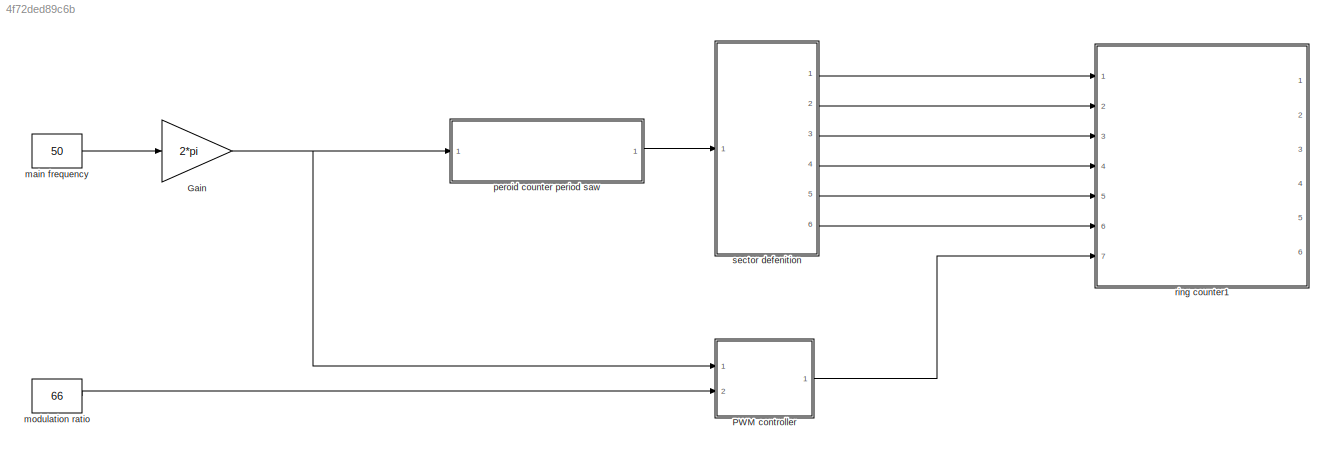
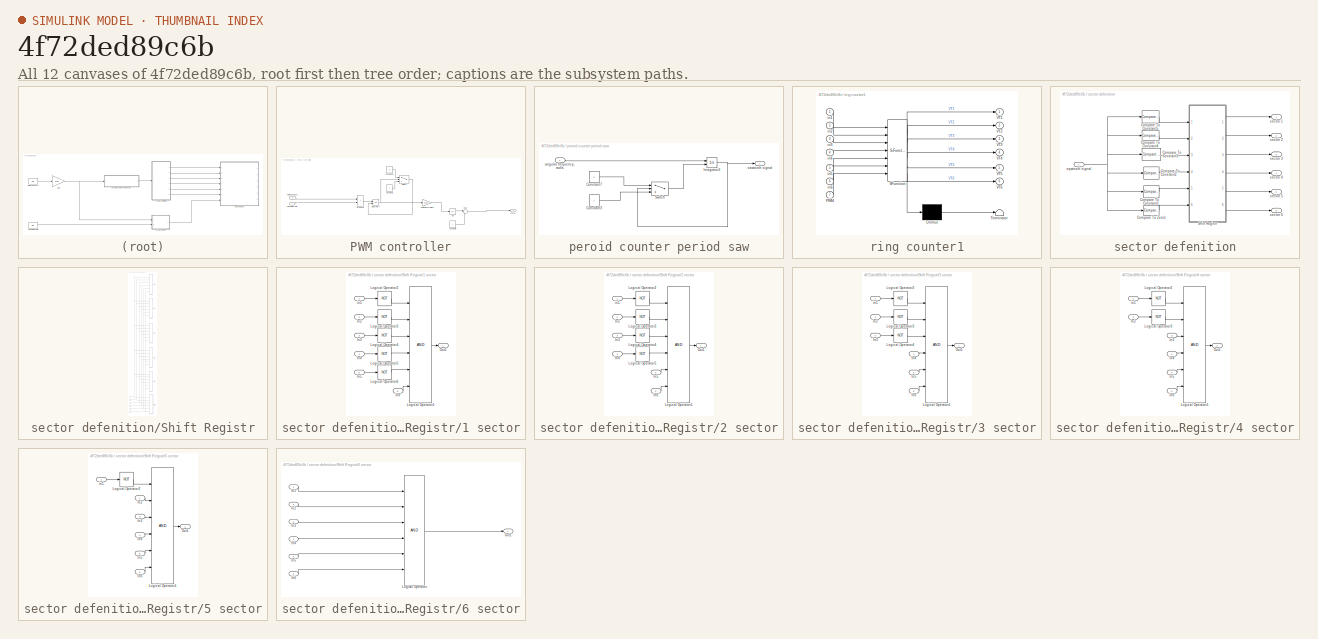
[diagram: thumbnail index - all 12 canvases of the model, root first then tree order]
MODEL slx_4f72ded89c6b
KIND model
CONFIG AbsTol = auto
CONFIG EnableMultiTasking = off
CONFIG FixedStep = auto
CONFIG MaxStep = auto
CONFIG MinStep = auto
CONFIG RelTol = 1e-3
CONFIG SampleTimeConstraint = Unconstrained
CONFIG Solver = VariableStepAuto
CONFIG SolverName = VariableStepAuto
CONFIG StartTime = 0.0
CONFIG StopTime = 0.02
BLOCK [Gain] Gain
  Gain = 2*pi
  OutDataTypeStr = Inherit: Inherit via internal rule
  ParamDataTypeStr = Inherit: Inherit via internal rule
  SaturateOnIntegerOverflow = off
BLOCK [SubSystem] PWM controller
  Ports = [2, 1]
  RequestExecContextInheritance = off
  Variant = off
BLOCK [Abs] PWM controller/Abs
  SaturateOnIntegerOverflow = off
BLOCK [Constant] PWM controller/Constant1
  OutDataTypeStr = double
  VectorParams1D = off
BLOCK [Constant] PWM controller/Constant10
  OutDataTypeStr = double
  Value = 0
  VectorParams1D = off
BLOCK [Constant] PWM controller/Constant8
  OutDataTypeStr = double
  VectorParams1D = off
BLOCK [Integrator] PWM controller/Integrator4
  ExternalReset = falling
  InitialCondition = -pi/3
  Ports = [2, 1]
BLOCK [Outport] PWM controller/PWM
  IconDisplay = Port number
BLOCK [Product] PWM controller/Product5
  InputSameDT = off
  OutDataTypeStr = Inherit: Inherit via internal rule
  Ports = [2, 1]
  RndMeth = Floor
  SaturateOnIntegerOverflow = off
BLOCK [Sum] PWM controller/Sum
  IconShape = round
  InputSameDT = off
  Inputs = |-+
  OutDataTypeStr = Inherit: Inherit via internal rule
  Ports = [2, 1]
  SaturateOnIntegerOverflow = off
BLOCK [Switch] PWM controller/Switch2
  InputSameDT = off
  SaturateOnIntegerOverflow = off
  Threshold = pi/3
BLOCK [Inport] PWM controller/main frequency
  IconDisplay = Port number
BLOCK [Inport] PWM controller/modulation ratio
  IconDisplay = Port number
  Port = 2
BLOCK [Gain] PWM controller/sawtooth normalize
  Gain = 3/pi
  OutDataTypeStr = Inherit: Inherit via internal rule
  ParamDataTypeStr = Inherit: Inherit via internal rule
  SaturateOnIntegerOverflow = off
BLOCK [Constant] main frequency
  OutDataTypeStr = double
  Value = 50
  VectorParams1D = off
BLOCK [Constant] modulation ratio
  OutDataTypeStr = double
  Value = 66
  VectorParams1D = off
BLOCK [SubSystem] peroid counter period saw
  Ports = [1, 1]
  RequestExecContextInheritance = off
  Variant = off
BLOCK [Constant] peroid counter period saw/Constant3
  OutDataTypeStr = double
  VectorParams1D = off
BLOCK [Constant] peroid counter period saw/Constant7
  OutDataTypeStr = double
  Value = 0
  VectorParams1D = off
BLOCK [Integrator] peroid counter period saw/Integrator2
  ExternalReset = falling
  Ports = [2, 1]
BLOCK [Switch] peroid counter period saw/Switch
  InputSameDT = off
  SaturateOnIntegerOverflow = off
  Threshold = 2*pi
BLOCK [Inport] peroid counter period saw/angular frequency, rad//s
  IconDisplay = Port number
BLOCK [Outport] peroid counter period saw/sawtooth signal
  IconDisplay = Port number
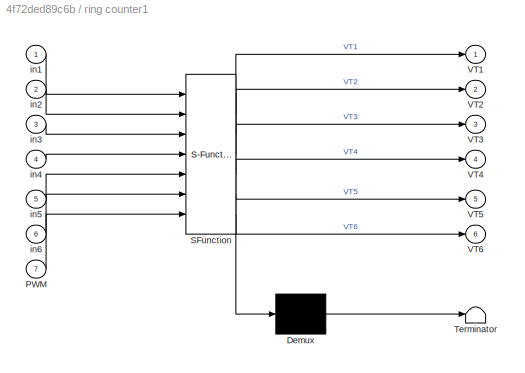
BLOCK [SubSystem] ring counter1
  ErrorFcn = Stateflow.Translate.translate
  PermitHierarchicalResolution = ExplicitOnly
  Ports = [7, 6]
  RequestExecContextInheritance = off
  SFBlockType = MATLAB Function
  TreatAsAtomicUnit = on
  Variant = off
BLOCK [Demux] ring counter1/ Demux 
  Outputs = 1
  Ports = [1, 1]
BLOCK [S-Function] ring counter1/ SFunction 
  EnableBusSupport = on
  FunctionName = sf_sfun
  PortCounts = [7 7]
  Ports = [7, 7]
  SFcnIsStateOwnerBlock = off
  SFunctionDeploymentMode = off
  Tag = Stateflow S-Function Logic3 5
BLOCK [Terminator] ring counter1/ Terminator 
BLOCK [Inport] ring counter1/PWM
  IconDisplay = Port number
  Port = 7
BLOCK [Outport] ring counter1/VT1
  IconDisplay = Port number
BLOCK [Outport] ring counter1/VT2
  IconDisplay = Port number
  Port = 2
BLOCK [Outport] ring counter1/VT3
  IconDisplay = Port number
  Port = 3
BLOCK [Outport] ring counter1/VT4
  IconDisplay = Port number
  Port = 4
BLOCK [Outport] ring counter1/VT5
  IconDisplay = Port number
  Port = 5
BLOCK [Outport] ring counter1/VT6
  IconDisplay = Port number
  Port = 6
BLOCK [Inport] ring counter1/in1
  IconDisplay = Port number
BLOCK [Inport] ring counter1/in2
  IconDisplay = Port number
  Port = 2
BLOCK [Inport] ring counter1/in3
  IconDisplay = Port number
  Port = 3
BLOCK [Inport] ring counter1/in4
  IconDisplay = Port number
  Port = 4
BLOCK [Inport] ring counter1/in5
  IconDisplay = Port number
  Port = 5
BLOCK [Inport] ring counter1/in6
  IconDisplay = Port number
  Port = 6
BLOCK [SubSystem] sector defenition
  Ports = [1, 6]
  RequestExecContextInheritance = off
  Variant = off
BLOCK [Reference] sector defenition/Compare To Constant1  REF=simulink/Logic and Bit
Operations/Compare
To Constant
  Ports = [1, 1]
  SourceBlock = simulink/Logic and Bit\nOperations/Compare\nTo Constant
  SourceProductBaseCode = SL
  SourceProductName = Simulink
  SourceType = Compare To Constant
BLOCK [Reference] sector defenition/Compare To Constant2  REF=simulink/Logic and Bit
Operations/Compare
To Constant
  Ports = [1, 1]
  SourceBlock = simulink/Logic and Bit\nOperations/Compare\nTo Constant
  SourceProductBaseCode = SL
  SourceProductName = Simulink
  SourceType = Compare To Constant
BLOCK [Reference] sector defenition/Compare To Constant3  REF=simulink/Logic and Bit
Operations/Compare
To Constant
  Ports = [1, 1]
  SourceBlock = simulink/Logic and Bit\nOperations/Compare\nTo Constant
  SourceProductBaseCode = SL
  SourceProductName = Simulink
  SourceType = Compare To Constant
BLOCK [Reference] sector defenition/Compare To Constant4  REF=simulink/Logic and Bit
Operations/Compare
To Constant
  Ports = [1, 1]
  SourceBlock = simulink/Logic and Bit\nOperations/Compare\nTo Constant
  SourceProductBaseCode = SL
  SourceProductName = Simulink
  SourceType = Compare To Constant
BLOCK [Reference] sector defenition/Compare To Constant5  REF=simulink/Logic and Bit
Operations/Compare
To Constant
  Ports = [1, 1]
  SourceBlock = simulink/Logic and Bit\nOperations/Compare\nTo Constant
  SourceProductBaseCode = SL
  SourceProductName = Simulink
  SourceType = Compare To Constant
BLOCK [Reference] sector defenition/Compare To Zero1  REF=simulink/Logic and Bit
Operations/Compare
To Zero
  Ports = [1, 1]
  SourceBlock = simulink/Logic and Bit\nOperations/Compare\nTo Zero
  SourceProductBaseCode = SL
  SourceProductName = Simulink
  SourceType = Compare To Zero
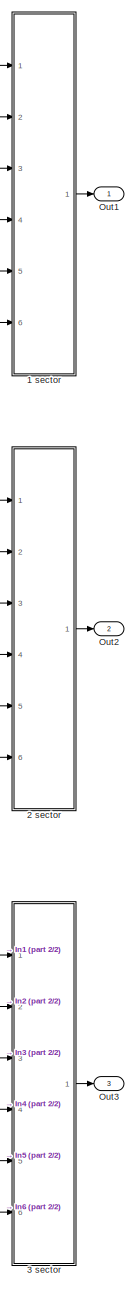
[diagram: sector defenition/Shift Registr - part 1/2, top right region]
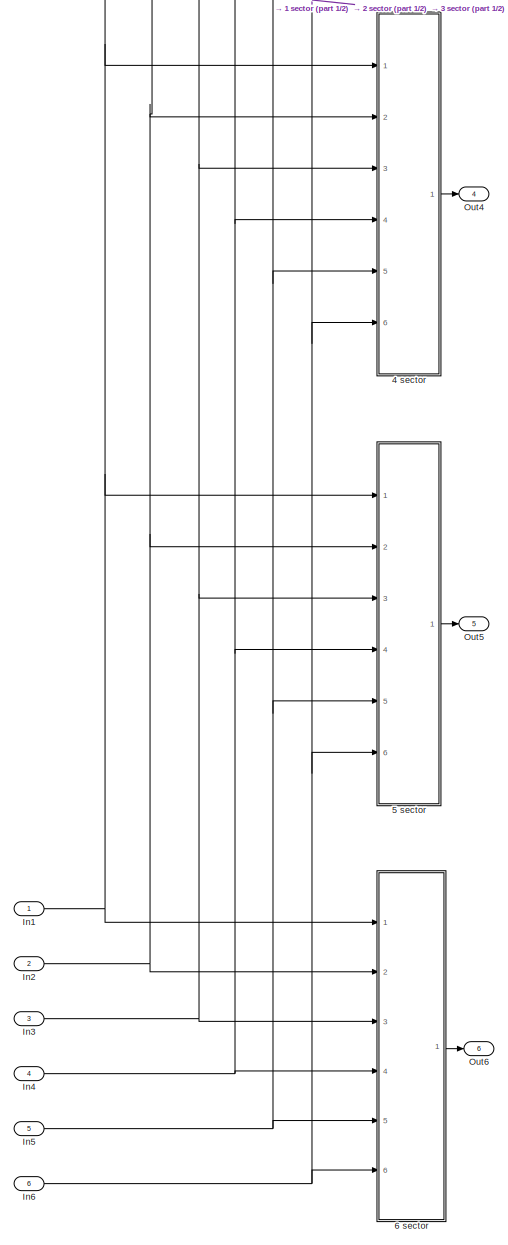
[diagram: sector defenition/Shift Registr - part 2/2, full width, bottom band]
BLOCK [SubSystem] sector defenition/Shift Registr
  Ports = [6, 6]
  RequestExecContextInheritance = off
  Variant = off
BLOCK [SubSystem] sector defenition/Shift Registr/1 sector
  Ports = [6, 1]
  RequestExecContextInheritance = off
  Variant = off
BLOCK [Inport] sector defenition/Shift Registr/1 sector/In2
  IconDisplay = Port number
  Port = 2
BLOCK [Inport] sector defenition/Shift Registr/1 sector/In3
  IconDisplay = Port number
  Port = 3
BLOCK [Inport] sector defenition/Shift Registr/1 sector/In4
  IconDisplay = Port number
  Port = 4
BLOCK [Inport] sector defenition/Shift Registr/1 sector/In5
  IconDisplay = Port number
  Port = 5
BLOCK [Inport] sector defenition/Shift Registr/1 sector/In6
  IconDisplay = Port number
  Port = 6
BLOCK [Logic] sector defenition/Shift Registr/1 sector/Logical Operator1
  AllPortsSameDT = off
  Inputs = 6
  OutDataTypeStr = boolean
  Ports = [6, 1]
BLOCK [Logic] sector defenition/Shift Registr/1 sector/Logical Operator2
  AllPortsSameDT = off
  Inputs = 6
  Operator = NOT
  OutDataTypeStr = boolean
  Ports = [1, 1]
BLOCK [Logic] sector defenition/Shift Registr/1 sector/Logical Operator3
  AllPortsSameDT = off
  Inputs = 6
  Operator = NOT
  OutDataTypeStr = boolean
  Ports = [1, 1]
BLOCK [Logic] sector defenition/Shift Registr/1 sector/Logical Operator4
  AllPortsSameDT = off
  Inputs = 6
  Operator = NOT
  OutDataTypeStr = boolean
  Ports = [1, 1]
BLOCK [Logic] sector defenition/Shift Registr/1 sector/Logical Operator5
  AllPortsSameDT = off
  Inputs = 6
  Operator = NOT
  OutDataTypeStr = boolean
  Ports = [1, 1]
BLOCK [Logic] sector defenition/Shift Registr/1 sector/Logical Operator6
  AllPortsSameDT = off
  Inputs = 6
  Operator = NOT
  OutDataTypeStr = boolean
  Ports = [1, 1]
BLOCK [Outport] sector defenition/Shift Registr/1 sector/Out1
  IconDisplay = Port number
BLOCK [Inport] sector defenition/Shift Registr/1 sector/in1
  IconDisplay = Port number
BLOCK [SubSystem] sector defenition/Shift Registr/2 sector
  Ports = [6, 1]
  RequestExecContextInheritance = off
  Variant = off
BLOCK [Inport] sector defenition/Shift Registr/2 sector/In2
  IconDisplay = Port number
  Port = 2
BLOCK [Inport] sector defenition/Shift Registr/2 sector/In3
  IconDisplay = Port number
  Port = 3
BLOCK [Inport] sector defenition/Shift Registr/2 sector/In4
  IconDisplay = Port number
  Port = 4
BLOCK [Inport] sector defenition/Shift Registr/2 sector/In5
  IconDisplay = Port number
  Port = 5
BLOCK [Inport] sector defenition/Shift Registr/2 sector/In6
  IconDisplay = Port number
  Port = 6
BLOCK [Logic] sector defenition/Shift Registr/2 sector/Logical Operator1
  AllPortsSameDT = off
  Inputs = 6
  OutDataTypeStr = boolean
  Ports = [6, 1]
BLOCK [Logic] sector defenition/Shift Registr/2 sector/Logical Operator2
  AllPortsSameDT = off
  Inputs = 6
  Operator = NOT
  OutDataTypeStr = boolean
  Ports = [1, 1]
BLOCK [Logic] sector defenition/Shift Registr/2 sector/Logical Operator3
  AllPortsSameDT = off
  Inputs = 6
  Operator = NOT
  OutDataTypeStr = boolean
  Ports = [1, 1]
BLOCK [Logic] sector defenition/Shift Registr/2 sector/Logical Operator4
  AllPortsSameDT = off
  Inputs = 6
  Operator = NOT
  OutDataTypeStr = boolean
  Ports = [1, 1]
BLOCK [Logic] sector defenition/Shift Registr/2 sector/Logical Operator5
  AllPortsSameDT = off
  Inputs = 6
  Operator = NOT
  OutDataTypeStr = boolean
  Ports = [1, 1]
BLOCK [Outport] sector defenition/Shift Registr/2 sector/Out1
  IconDisplay = Port number
BLOCK [Inport] sector defenition/Shift Registr/2 sector/in1
  IconDisplay = Port number
BLOCK [SubSystem] sector defenition/Shift Registr/3 sector
  Ports = [6, 1]
  RequestExecContextInheritance = off
  Variant = off
BLOCK [Inport] sector defenition/Shift Registr/3 sector/In2
  IconDisplay = Port number
  Port = 2
BLOCK [Inport] sector defenition/Shift Registr/3 sector/In3
  IconDisplay = Port number
  Port = 3
BLOCK [Inport] sector defenition/Shift Registr/3 sector/In4
  IconDisplay = Port number
  Port = 4
BLOCK [Inport] sector defenition/Shift Registr/3 sector/In5
  IconDisplay = Port number
  Port = 5
BLOCK [Inport] sector defenition/Shift Registr/3 sector/In6
  IconDisplay = Port number
  Port = 6
BLOCK [Logic] sector defenition/Shift Registr/3 sector/Logical Operator1
  AllPortsSameDT = off
  Inputs = 6
  OutDataTypeStr = boolean
  Ports = [6, 1]
BLOCK [Logic] sector defenition/Shift Registr/3 sector/Logical Operator2
  AllPortsSameDT = off
  Inputs = 6
  Operator = NOT
  OutDataTypeStr = boolean
  Ports = [1, 1]
BLOCK [Logic] sector defenition/Shift Registr/3 sector/Logical Operator3
  AllPortsSameDT = off
  Inputs = 6
  Operator = NOT
  OutDataTypeStr = boolean
  Ports = [1, 1]
BLOCK [Logic] sector defenition/Shift Registr/3 sector/Logical Operator4
  AllPortsSameDT = off
  Inputs = 6
  Operator = NOT
  OutDataTypeStr = boolean
  Ports = [1, 1]
BLOCK [Outport] sector defenition/Shift Registr/3 sector/Out1
  IconDisplay = Port number
BLOCK [Inport] sector defenition/Shift Registr/3 sector/in1
  IconDisplay = Port number
BLOCK [SubSystem] sector defenition/Shift Registr/4 sector
  Ports = [6, 1]
  RequestExecContextInheritance = off
  Variant = off
BLOCK [Inport] sector defenition/Shift Registr/4 sector/In2
  IconDisplay = Port number
  Port = 2
BLOCK [Inport] sector defenition/Shift Registr/4 sector/In3
  IconDisplay = Port number
  Port = 3
BLOCK [Inport] sector defenition/Shift Registr/4 sector/In4
  IconDisplay = Port number
  Port = 4
BLOCK [Inport] sector defenition/Shift Registr/4 sector/In5
  IconDisplay = Port number
  Port = 5
BLOCK [Inport] sector defenition/Shift Registr/4 sector/In6
  IconDisplay = Port number
  Port = 6
BLOCK [Logic] sector defenition/Shift Registr/4 sector/Logical Operator1
  AllPortsSameDT = off
  Inputs = 6
  OutDataTypeStr = boolean
  Ports = [6, 1]
BLOCK [Logic] sector defenition/Shift Registr/4 sector/Logical Operator2
  AllPortsSameDT = off
  Inputs = 6
  Operator = NOT
  OutDataTypeStr = boolean
  Ports = [1, 1]
BLOCK [Logic] sector defenition/Shift Registr/4 sector/Logical Operator3
  AllPortsSameDT = off
  Inputs = 6
  Operator = NOT
  OutDataTypeStr = boolean
  Ports = [1, 1]
BLOCK [Outport] sector defenition/Shift Registr/4 sector/Out1
  IconDisplay = Port number
BLOCK [Inport] sector defenition/Shift Registr/4 sector/in1
  IconDisplay = Port number
BLOCK [SubSystem] sector defenition/Shift Registr/5 sector
  Ports = [6, 1]
  RequestExecContextInheritance = off
  Variant = off
BLOCK [Inport] sector defenition/Shift Registr/5 sector/In2
  IconDisplay = Port number
  Port = 2
BLOCK [Inport] sector defenition/Shift Registr/5 sector/In3
  IconDisplay = Port number
  Port = 3
BLOCK [Inport] sector defenition/Shift Registr/5 sector/In4
  IconDisplay = Port number
  Port = 4
BLOCK [Inport] sector defenition/Shift Registr/5 sector/In5
  IconDisplay = Port number
  Port = 5
BLOCK [Inport] sector defenition/Shift Registr/5 sector/In6
  IconDisplay = Port number
  Port = 6
BLOCK [Logic] sector defenition/Shift Registr/5 sector/Logical Operator1
  AllPortsSameDT = off
  Inputs = 6
  OutDataTypeStr = boolean
  Ports = [6, 1]
BLOCK [Logic] sector defenition/Shift Registr/5 sector/Logical Operator2
  AllPortsSameDT = off
  Inputs = 6
  Operator = NOT
  OutDataTypeStr = boolean
  Ports = [1, 1]
BLOCK [Outport] sector defenition/Shift Registr/5 sector/Out1
  IconDisplay = Port number
BLOCK [Inport] sector defenition/Shift Registr/5 sector/in1
  IconDisplay = Port number
BLOCK [SubSystem] sector defenition/Shift Registr/6 sector
  Ports = [6, 1]
  RequestExecContextInheritance = off
  Variant = off
BLOCK [Inport] sector defenition/Shift Registr/6 sector/In1
  IconDisplay = Port number
BLOCK [Inport] sector defenition/Shift Registr/6 sector/In2
  IconDisplay = Port number
  Port = 2
BLOCK [Inport] sector defenition/Shift Registr/6 sector/In3
  IconDisplay = Port number
  Port = 3
BLOCK [Inport] sector defenition/Shift Registr/6 sector/In4
  IconDisplay = Port number
  Port = 4
BLOCK [Inport] sector defenition/Shift Registr/6 sector/In5
  IconDisplay = Port number
  Port = 5
BLOCK [Inport] sector defenition/Shift Registr/6 sector/In6
  IconDisplay = Port number
  Port = 6
BLOCK [Logic] sector defenition/Shift Registr/6 sector/Logical Operator
  AllPortsSameDT = off
  Inputs = 6
  OutDataTypeStr = boolean
  Ports = [6, 1]
BLOCK [Outport] sector defenition/Shift Registr/6 sector/Out1
  IconDisplay = Port number
BLOCK [Inport] sector defenition/Shift Registr/In1
  IconDisplay = Port number
BLOCK [Inport] sector defenition/Shift Registr/In2
  IconDisplay = Port number
  Port = 2
BLOCK [Inport] sector defenition/Shift Registr/In3
  IconDisplay = Port number
  Port = 3
BLOCK [Inport] sector defenition/Shift Registr/In4
  IconDisplay = Port number
  Port = 4
BLOCK [Inport] sector defenition/Shift Registr/In5
  IconDisplay = Port number
  Port = 5
BLOCK [Inport] sector defenition/Shift Registr/In6
  IconDisplay = Port number
  Port = 6
BLOCK [Outport] sector defenition/Shift Registr/Out1
  IconDisplay = Port number
BLOCK [Outport] sector defenition/Shift Registr/Out2
  IconDisplay = Port number
  Port = 2
BLOCK [Outport] sector defenition/Shift Registr/Out3
  IconDisplay = Port number
  Port = 3
BLOCK [Outport] sector defenition/Shift Registr/Out4
  IconDisplay = Port number
  Port = 4
BLOCK [Outport] sector defenition/Shift Registr/Out5
  IconDisplay = Port number
  Port = 5
BLOCK [Outport] sector defenition/Shift Registr/Out6
  IconDisplay = Port number
  Port = 6
BLOCK [Outport] sector defenition/sector 1
  IconDisplay = Port number
BLOCK [Outport] sector defenition/sector 2
  IconDisplay = Port number
  Port = 2
BLOCK [Outport] sector defenition/sector 3
  IconDisplay = Port number
  Port = 3
BLOCK [Outport] sector defenition/sector 4
  IconDisplay = Port number
  Port = 4
BLOCK [Outport] sector defenition/sector 5
  IconDisplay = Port number
  Port = 5
BLOCK [Outport] sector defenition/sector 6
  IconDisplay = Port number
  Port = 6
BLOCK [Inport] sector defenition/sqwtooth signal
  IconDisplay = Port number
NET Gain:1 -> PWM controller:1, peroid counter period saw:1
LINE PWM controller/Abs:1 -> PWM controller/Sum:1
LINE PWM controller/Constant10:1 -> PWM controller/Switch2:1
LINE PWM controller/Constant1:1 -> PWM controller/Switch2:3
LINE PWM controller/Constant8:1 -> PWM controller/Sum:2
NET PWM controller/Integrator4:1 -> PWM controller/Switch2:2, PWM controller/sawtooth normalize:1
LINE PWM controller/Product5:1 -> PWM controller/Integrator4:1
LINE PWM controller/Sum:1 -> PWM controller/PWM:1
LINE PWM controller/Switch2:1 -> PWM controller/Integrator4:2
LINE PWM controller/main frequency:1 -> PWM controller/Product5:1
LINE PWM controller/modulation ratio:1 -> PWM controller/Product5:2
LINE PWM controller/sawtooth normalize:1 -> PWM controller/Abs:1
LINE PWM controller:1 -> ring counter1:7
LINE main frequency:1 -> Gain:1
LINE modulation ratio:1 -> PWM controller:2
LINE peroid counter period saw/Constant3:1 -> peroid counter period saw/Switch:3
LINE peroid counter period saw/Constant7:1 -> peroid counter period saw/Switch:1
NET peroid counter period saw/Integrator2:1 -> peroid counter period saw/Switch:2, peroid counter period saw/sawtooth signal:1
LINE peroid counter period saw/Switch:1 -> peroid counter period saw/Integrator2:2
LINE peroid counter period saw/angular frequency, rad//s:1 -> peroid counter period saw/Integrator2:1
LINE peroid counter period saw:1 -> sector defenition:1
LINE sector defenition/Compare To Constant1:1 -> sector defenition/Shift Registr:5
LINE sector defenition/Compare To Constant2:1 -> sector defenition/Shift Registr:4
LINE sector defenition/Compare To Constant3:1 -> sector defenition/Shift Registr:3
LINE sector defenition/Compare To Constant4:1 -> sector defenition/Shift Registr:2
LINE sector defenition/Compare To Constant5:1 -> sector defenition/Shift Registr:1
LINE sector defenition/Compare To Zero1:1 -> sector defenition/Shift Registr:6
LINE sector defenition/Shift Registr/1 sector/In2:1 -> sector defenition/Shift Registr/1 sector/Logical Operator3:1
LINE sector defenition/Shift Registr/1 sector/In3:1 -> sector defenition/Shift Registr/1 sector/Logical Operator4:1
LINE sector defenition/Shift Registr/1 sector/In4:1 -> sector defenition/Shift Registr/1 sector/Logical Operator5:1
LINE sector defenition/Shift Registr/1 sector/In5:1 -> sector defenition/Shift Registr/1 sector/Logical Operator6:1
LINE sector defenition/Shift Registr/1 sector/In6:1 -> sector defenition/Shift Registr/1 sector/Logical Operator1:6
LINE sector defenition/Shift Registr/1 sector/Logical Operator1:1 -> sector defenition/Shift Registr/1 sector/Out1:1
LINE sector defenition/Shift Registr/1 sector/Logical Operator2:1 -> sector defenition/Shift Registr/1 sector/Logical Operator1:1
LINE sector defenition/Shift Registr/1 sector/Logical Operator3:1 -> sector defenition/Shift Registr/1 sector/Logical Operator1:2
LINE sector defenition/Shift Registr/1 sector/Logical Operator4:1 -> sector defenition/Shift Registr/1 sector/Logical Operator1:3
LINE sector defenition/Shift Registr/1 sector/Logical Operator5:1 -> sector defenition/Shift Registr/1 sector/Logical Operator1:4
LINE sector defenition/Shift Registr/1 sector/Logical Operator6:1 -> sector defenition/Shift Registr/1 sector/Logical Operator1:5
LINE sector defenition/Shift Registr/1 sector/in1:1 -> sector defenition/Shift Registr/1 sector/Logical Operator2:1
LINE sector defenition/Shift Registr/1 sector:1 -> sector defenition/Shift Registr/Out1:1
LINE sector defenition/Shift Registr/2 sector/In2:1 -> sector defenition/Shift Registr/2 sector/Logical Operator3:1
LINE sector defenition/Shift Registr/2 sector/In3:1 -> sector defenition/Shift Registr/2 sector/Logical Operator4:1
LINE sector defenition/Shift Registr/2 sector/In4:1 -> sector defenition/Shift Registr/2 sector/Logical Operator5:1
LINE sector defenition/Shift Registr/2 sector/In5:1 -> sector defenition/Shift Registr/2 sector/Logical Operator1:5
LINE sector defenition/Shift Registr/2 sector/In6:1 -> sector defenition/Shift Registr/2 sector/Logical Operator1:6
LINE sector defenition/Shift Registr/2 sector/Logical Operator1:1 -> sector defenition/Shift Registr/2 sector/Out1:1
LINE sector defenition/Shift Registr/2 sector/Logical Operator2:1 -> sector defenition/Shift Registr/2 sector/Logical Operator1:1
LINE sector defenition/Shift Registr/2 sector/Logical Operator3:1 -> sector defenition/Shift Registr/2 sector/Logical Operator1:2
LINE sector defenition/Shift Registr/2 sector/Logical Operator4:1 -> sector defenition/Shift Registr/2 sector/Logical Operator1:3
LINE sector defenition/Shift Registr/2 sector/Logical Operator5:1 -> sector defenition/Shift Registr/2 sector/Logical Operator1:4
LINE sector defenition/Shift Registr/2 sector/in1:1 -> sector defenition/Shift Registr/2 sector/Logical Operator2:1
LINE sector defenition/Shift Registr/2 sector:1 -> sector defenition/Shift Registr/Out2:1
LINE sector defenition/Shift Registr/3 sector/In2:1 -> sector defenition/Shift Registr/3 sector/Logical Operator3:1
LINE sector defenition/Shift Registr/3 sector/In3:1 -> sector defenition/Shift Registr/3 sector/Logical Operator4:1
LINE sector defenition/Shift Registr/3 sector/In4:1 -> sector defenition/Shift Registr/3 sector/Logical Operator1:4
LINE sector defenition/Shift Registr/3 sector/In5:1 -> sector defenition/Shift Registr/3 sector/Logical Operator1:5
LINE sector defenition/Shift Registr/3 sector/In6:1 -> sector defenition/Shift Registr/3 sector/Logical Operator1:6
LINE sector defenition/Shift Registr/3 sector/Logical Operator1:1 -> sector defenition/Shift Registr/3 sector/Out1:1
LINE sector defenition/Shift Registr/3 sector/Logical Operator2:1 -> sector defenition/Shift Registr/3 sector/Logical Operator1:1
LINE sector defenition/Shift Registr/3 sector/Logical Operator3:1 -> sector defenition/Shift Registr/3 sector/Logical Operator1:2
LINE sector defenition/Shift Registr/3 sector/Logical Operator4:1 -> sector defenition/Shift Registr/3 sector/Logical Operator1:3
LINE sector defenition/Shift Registr/3 sector/in1:1 -> sector defenition/Shift Registr/3 sector/Logical Operator2:1
LINE sector defenition/Shift Registr/3 sector:1 -> sector defenition/Shift Registr/Out3:1
LINE sector defenition/Shift Registr/4 sector/In2:1 -> sector defenition/Shift Registr/4 sector/Logical Operator3:1
LINE sector defenition/Shift Registr/4 sector/In3:1 -> sector defenition/Shift Registr/4 sector/Logical Operator1:3
LINE sector defenition/Shift Registr/4 sector/In4:1 -> sector defenition/Shift Registr/4 sector/Logical Operator1:4
LINE sector defenition/Shift Registr/4 sector/In5:1 -> sector defenition/Shift Registr/4 sector/Logical Operator1:5
LINE sector defenition/Shift Registr/4 sector/In6:1 -> sector defenition/Shift Registr/4 sector/Logical Operator1:6
LINE sector defenition/Shift Registr/4 sector/Logical Operator1:1 -> sector defenition/Shift Registr/4 sector/Out1:1
LINE sector defenition/Shift Registr/4 sector/Logical Operator2:1 -> sector defenition/Shift Registr/4 sector/Logical Operator1:1
LINE sector defenition/Shift Registr/4 sector/Logical Operator3:1 -> sector defenition/Shift Registr/4 sector/Logical Operator1:2
LINE sector defenition/Shift Registr/4 sector/in1:1 -> sector defenition/Shift Registr/4 sector/Logical Operator2:1
LINE sector defenition/Shift Registr/4 sector:1 -> sector defenition/Shift Registr/Out4:1
LINE sector defenition/Shift Registr/5 sector/In2:1 -> sector defenition/Shift Registr/5 sector/Logical Operator1:2
LINE sector defenition/Shift Registr/5 sector/In3:1 -> sector defenition/Shift Registr/5 sector/Logical Operator1:3
LINE sector defenition/Shift Registr/5 sector/In4:1 -> sector defenition/Shift Registr/5 sector/Logical Operator1:4
LINE sector defenition/Shift Registr/5 sector/In5:1 -> sector defenition/Shift Registr/5 sector/Logical Operator1:5
LINE sector defenition/Shift Registr/5 sector/In6:1 -> sector defenition/Shift Registr/5 sector/Logical Operator1:6
LINE sector defenition/Shift Registr/5 sector/Logical Operator1:1 -> sector defenition/Shift Registr/5 sector/Out1:1
LINE sector defenition/Shift Registr/5 sector/Logical Operator2:1 -> sector defenition/Shift Registr/5 sector/Logical Operator1:1
LINE sector defenition/Shift Registr/5 sector/in1:1 -> sector defenition/Shift Registr/5 sector/Logical Operator2:1
LINE sector defenition/Shift Registr/5 sector:1 -> sector defenition/Shift Registr/Out5:1
LINE sector defenition/Shift Registr/6 sector/In1:1 -> sector defenition/Shift Registr/6 sector/Logical Operator:1
LINE sector defenition/Shift Registr/6 sector/In2:1 -> sector defenition/Shift Registr/6 sector/Logical Operator:2
LINE sector defenition/Shift Registr/6 sector/In3:1 -> sector defenition/Shift Registr/6 sector/Logical Operator:3
LINE sector defenition/Shift Registr/6 sector/In4:1 -> sector defenition/Shift Registr/6 sector/Logical Operator:4
LINE sector defenition/Shift Registr/6 sector/In5:1 -> sector defenition/Shift Registr/6 sector/Logical Operator:5
LINE sector defenition/Shift Registr/6 sector/In6:1 -> sector defenition/Shift Registr/6 sector/Logical Operator:6
LINE sector defenition/Shift Registr/6 sector/Logical Operator:1 -> sector defenition/Shift Registr/6 sector/Out1:1
LINE sector defenition/Shift Registr/6 sector:1 -> sector defenition/Shift Registr/Out6:1
NET sector defenition/Shift Registr/In1:1 -> sector defenition/Shift Registr/1 sector:1, sector defenition/Shift Registr/2 sector:1, sector defenition/Shift Registr/3 sector:1, sector defenition/Shift Registr/4 sector:1, sector defenition/Shift Registr/5 sector:1, sector defenition/Shift Registr/6 sector:1
NET sector defenition/Shift Registr/In2:1 -> sector defenition/Shift Registr/1 sector:2, sector defenition/Shift Registr/2 sector:2, sector defenition/Shift Registr/3 sector:2, sector defenition/Shift Registr/4 sector:2, sector defenition/Shift Registr/5 sector:2, sector defenition/Shift Registr/6 sector:2
NET sector defenition/Shift Registr/In3:1 -> sector defenition/Shift Registr/1 sector:3, sector defenition/Shift Registr/2 sector:3, sector defenition/Shift Registr/3 sector:3, sector defenition/Shift Registr/4 sector:3, sector defenition/Shift Registr/5 sector:3, sector defenition/Shift Registr/6 sector:3
NET sector defenition/Shift Registr/In4:1 -> sector defenition/Shift Registr/1 sector:4, sector defenition/Shift Registr/2 sector:4, sector defenition/Shift Registr/3 sector:4, sector defenition/Shift Registr/4 sector:4, sector defenition/Shift Registr/5 sector:4, sector defenition/Shift Registr/6 sector:4
NET sector defenition/Shift Registr/In5:1 -> sector defenition/Shift Registr/1 sector:5, sector defenition/Shift Registr/2 sector:5, sector defenition/Shift Registr/3 sector:5, sector defenition/Shift Registr/4 sector:5, sector defenition/Shift Registr/5 sector:5, sector defenition/Shift Registr/6 sector:5
NET sector defenition/Shift Registr/In6:1 -> sector defenition/Shift Registr/1 sector:6, sector defenition/Shift Registr/2 sector:6, sector defenition/Shift Registr/3 sector:6, sector defenition/Shift Registr/4 sector:6, sector defenition/Shift Registr/5 sector:6, sector defenition/Shift Registr/6 sector:6
LINE sector defenition/Shift Registr:1 -> sector defenition/sector 1:1
LINE sector defenition/Shift Registr:2 -> sector defenition/sector 2:1
LINE sector defenition/Shift Registr:3 -> sector defenition/sector 3:1
LINE sector defenition/Shift Registr:4 -> sector defenition/sector 4:1
LINE sector defenition/Shift Registr:5 -> sector defenition/sector 5:1
LINE sector defenition/Shift Registr:6 -> sector defenition/sector 6:1
NET sector defenition/sqwtooth signal:1 -> sector defenition/Compare To Constant1:1, sector defenition/Compare To Constant2:1, sector defenition/Compare To Constant3:1, sector defenition/Compare To Constant4:1, sector defenition/Compare To Constant5:1, sector defenition/Compare To Zero1:1
LINE sector defenition:1 -> ring counter1:1
LINE sector defenition:2 -> ring counter1:2
LINE sector defenition:3 -> ring counter1:3
LINE sector defenition:4 -> ring counter1:4
LINE sector defenition:5 -> ring counter1:5
LINE sector defenition:6 -> ring counter1:6
note: NET lines group one-source signal fan-out (src -> all destinations, sorted); 1:1 wires keep LINE
CHART ring counter1 states=1 transitions=1
  STATE_LABEL 'eML_blk_kernel()'
  STATE_LABEL 'SCRIPT:\nfunction [VT1, VT2, VT3, VT4, VT5, VT6] = fcn(in1, in2, in3, in4, in5, in6, PWM)\n\nVT1 = in1 | (in2 & PWM) | in3 |(in5 & (~PWM));\nVT2 = (in2 & (~PWM)) | in4 | (in5 & PWM) | in6;\n\nVT3 = in3 | (in4 & PWM) | in5 |(in1 & (~PWM));\nVT4 = (in4 & (~PWM)) | in6 | (in1 & PWM) | in2;\n\nVT5 = in5 | (in6 & PWM) | in1 |(in3 & (~PWM));\nVT6 = (in6 & (~PWM)) | in2 | (in3 & PWM) | in4;\n\n\n\nend\n\n'
